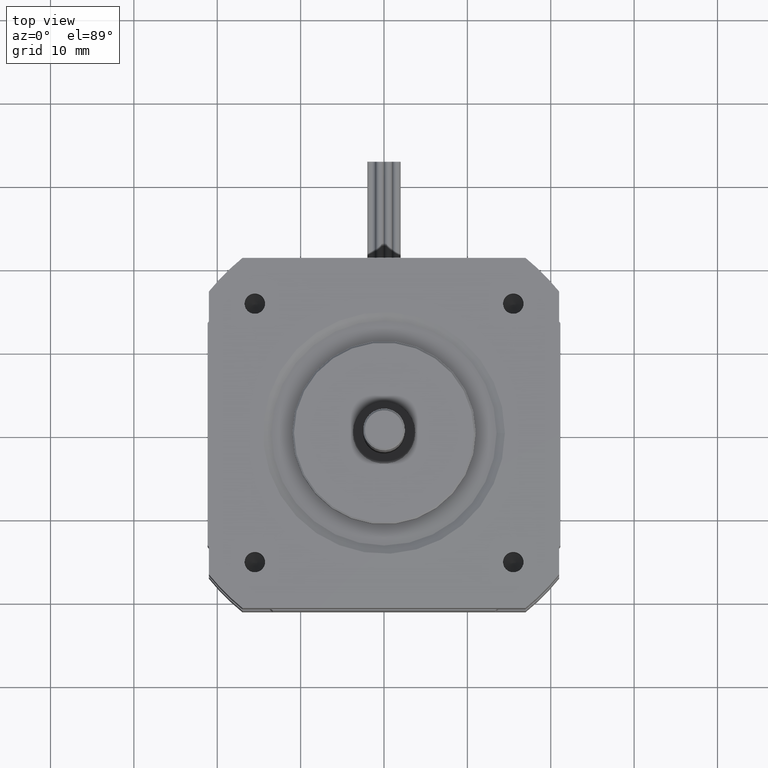
[diagram: clean part render]
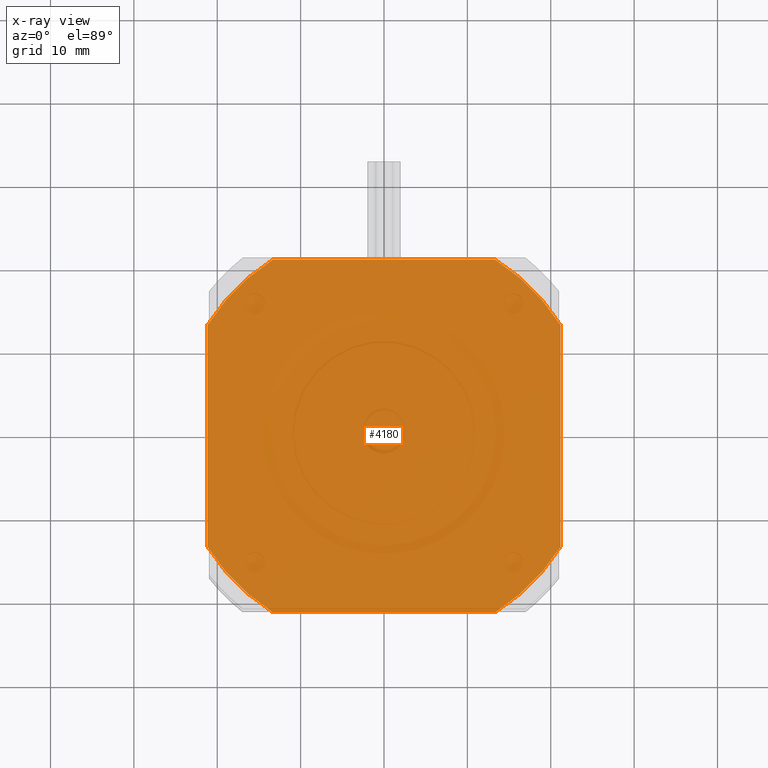
[diagram: x-ray — body ghosted, one internal face saturated and labeled with its STEP entity id]
A machine part, top view, then the same camera in x-ray: the body is ghosted and one INTERNAL B-rep face — a face not visible from any outside direction — is saturated and labeled: STEP entity #4180.
In plain terms, the highlighted planar face has unit normal (0, -0, 1).
Its self-contained STEP definition (entity closure, byte-faithful):
#342=LINE('',#7284,#590);
#343=LINE('',#7288,#591);
#344=LINE('',#7292,#592);
#345=LINE('',#7295,#593);
#590=VECTOR('',#5917,10.);
#591=VECTOR('',#5920,10.);
#592=VECTOR('',#5923,10.);
#593=VECTOR('',#5926,10.);
#731=PLANE('',#4691);
#815=FACE_BOUND('',#1444,.T.);
#1110=FACE_OUTER_BOUND('',#1443,.T.);
#1443=EDGE_LOOP('',(#3705,#3706,#3707,#3708,#3709,#3710,#3711,#3712));
#1444=EDGE_LOOP('',(#3713));
#1677=CIRCLE('',#4689,0.5);
#1679=CIRCLE('',#4692,25.);
#1680=CIRCLE('',#4693,25.);
#1681=CIRCLE('',#4694,25.);
#1682=CIRCLE('',#4695,25.);
#2057=VERTEX_POINT('',#7275);
#2059=VERTEX_POINT('',#7280);
#2060=VERTEX_POINT('',#7281);
#2061=VERTEX_POINT('',#7283);
#2062=VERTEX_POINT('',#7285);
#2063=VERTEX_POINT('',#7287);
#2064=VERTEX_POINT('',#7289);
#2065=VERTEX_POINT('',#7291);
#2066=VERTEX_POINT('',#7293);
#2609=EDGE_CURVE('',#2057,#2057,#1677,.T.);
#2611=EDGE_CURVE('',#2059,#2060,#1679,.T.);
#2612=EDGE_CURVE('',#2061,#2059,#342,.T.);
#2613=EDGE_CURVE('',#2062,#2061,#1680,.T.);
#2614=EDGE_CURVE('',#2063,#2062,#343,.T.);
#2615=EDGE_CURVE('',#2064,#2063,#1681,.T.);
#2616=EDGE_CURVE('',#2065,#2064,#344,.T.);
#2617=EDGE_CURVE('',#2066,#2065,#1682,.T.);
#2618=EDGE_CURVE('',#2060,#2066,#345,.T.);
#3705=ORIENTED_EDGE('',*,*,#2611,.F.);
#3706=ORIENTED_EDGE('',*,*,#2612,.F.);
#3707=ORIENTED_EDGE('',*,*,#2613,.F.);
#3708=ORIENTED_EDGE('',*,*,#2614,.F.);
#3709=ORIENTED_EDGE('',*,*,#2615,.F.);
#3710=ORIENTED_EDGE('',*,*,#2616,.F.);
#3711=ORIENTED_EDGE('',*,*,#2617,.F.);
#3712=ORIENTED_EDGE('',*,*,#2618,.F.);
#3713=ORIENTED_EDGE('',*,*,#2609,.T.);
#4180=ADVANCED_FACE('',(#1110,#815),#731,.F.);
#4689=AXIS2_PLACEMENT_3D('',#7276,#5909,#5910);
#4691=AXIS2_PLACEMENT_3D('',#7279,#5913,#5914);
#4692=AXIS2_PLACEMENT_3D('',#7282,#5915,#5916);
#4693=AXIS2_PLACEMENT_3D('',#7286,#5918,#5919);
#4694=AXIS2_PLACEMENT_3D('',#7290,#5921,#5922);
#4695=AXIS2_PLACEMENT_3D('',#7294,#5924,#5925);
#5909=DIRECTION('center_axis',(9.4368957093138E-16,-2.46519032881584E-32,
1.));
#5910=DIRECTION('ref_axis',(-1.,2.22044604925031E-16,9.4368957093138E-16));
#5913=DIRECTION('center_axis',(9.4368957093138E-16,-2.46519032881584E-32,
1.));
#5914=DIRECTION('ref_axis',(1.,-2.22044604925031E-16,-8.88178419700125E-16));
#5915=DIRECTION('center_axis',(9.4368957093138E-16,-2.46519032881584E-32,
1.));
#5916=DIRECTION('ref_axis',(-0.845999999999999,-0.533182895449583,7.98361377007946E-16));
#5917=DIRECTION('',(-1.44375980718239E-15,1.,1.38711297625608E-30));
#5918=DIRECTION('center_axis',(9.4368957093138E-16,-2.46519032881584E-32,
1.));
#5919=DIRECTION('ref_axis',(-0.533182895449583,0.846,5.03159137834767E-16));
#5920=DIRECTION('',(1.,1.11059892476091E-15,-9.4368957093138E-16));
#5921=DIRECTION('center_axis',(9.4368957093138E-16,-2.46519032881584E-32,
1.));
#5922=DIRECTION('ref_axis',(0.845999999999999,0.533182895449583,-7.98361377007946E-16));
#5923=DIRECTION('',(1.44375980718239E-15,-1.,-1.38711297625608E-30));
#5924=DIRECTION('center_axis',(9.4368957093138E-16,-2.46519032881584E-32,
1.));
#5925=DIRECTION('ref_axis',(0.533182895449583,-0.846,-5.03159137834767E-16));
#5926=DIRECTION('',(-1.,-4.44277159917939E-16,9.4368957093138E-16));
#7275=CARTESIAN_POINT('',(0.499999999999984,4.66865789215177E-15,-15.5000000000001));
#7276=CARTESIAN_POINT('Origin',(-1.57894530783409E-14,4.71844785465692E-15,
-15.5000000000001));
#7279=CARTESIAN_POINT('Origin',(-1.68996761029661E-14,1.94289029309402E-15,
-15.5000000000001));
#7280=CARTESIAN_POINT('',(21.15,13.3295723862396,-15.5000000000001));
#7281=CARTESIAN_POINT('',(13.3295723862395,21.15,-15.5000000000001));
#7282=CARTESIAN_POINT('Origin',(-1.57894530783409E-14,4.71844785465692E-15,
-15.5000000000001));
#7283=CARTESIAN_POINT('',(21.15,-13.3295723862395,-15.5000000000001));
#7284=CARTESIAN_POINT('',(21.15,13.3295723862396,-15.5000000000001));
#7285=CARTESIAN_POINT('',(13.3295723862396,-21.15,-15.5000000000001));
#7286=CARTESIAN_POINT('Origin',(-1.57894530783409E-14,4.71844785465692E-15,
-15.5000000000001));
#7287=CARTESIAN_POINT('',(-13.3295723862395,-21.15,-15.5000000000001));
#7288=CARTESIAN_POINT('',(13.3295723862396,-21.15,-15.5000000000001));
#7289=CARTESIAN_POINT('',(-21.15,-13.3295723862396,-15.5));
#7290=CARTESIAN_POINT('Origin',(-1.57894530783409E-14,4.71844785465692E-15,
-15.5000000000001));
#7291=CARTESIAN_POINT('',(-21.15,13.3295723862395,-15.5));
#7292=CARTESIAN_POINT('',(-21.15,-13.3295723862396,-15.5));
#7293=CARTESIAN_POINT('',(-13.3295723862396,21.15,-15.5000000000001));
#7294=CARTESIAN_POINT('Origin',(-1.57894530783409E-14,4.71844785465692E-15,
-15.5000000000001));
#7295=CARTESIAN_POINT('',(-13.3295723862396,21.15,-15.5000000000001));